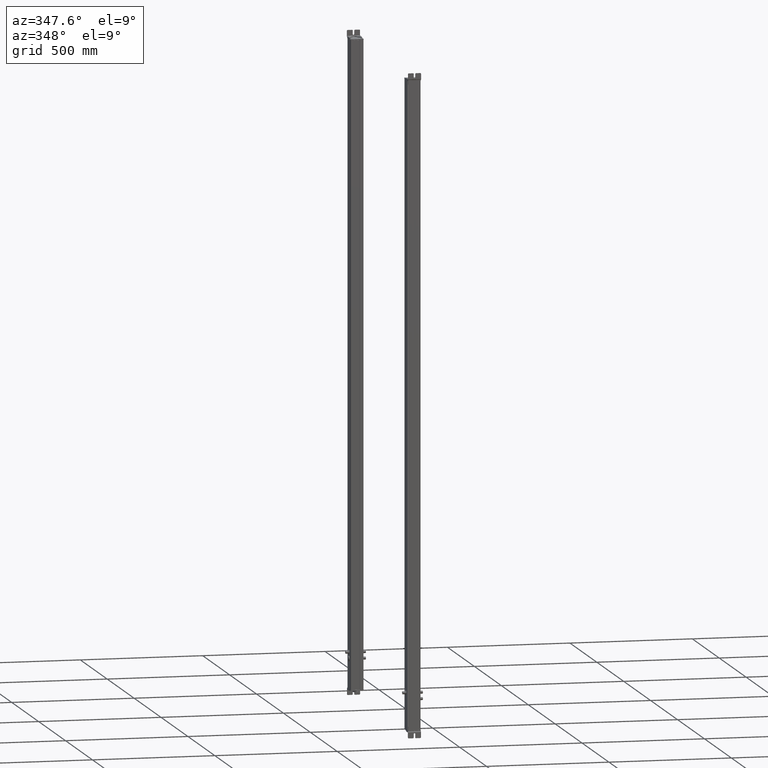
[diagram: clean part render]
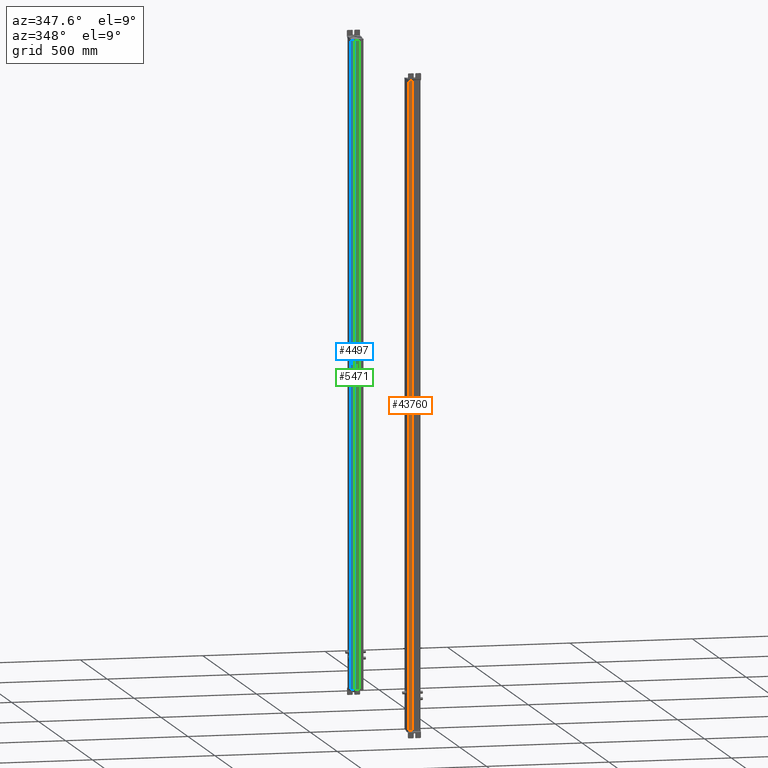
[diagram: same view with three faces highlighted in distinct colors, each labeled with its STEP entity id]
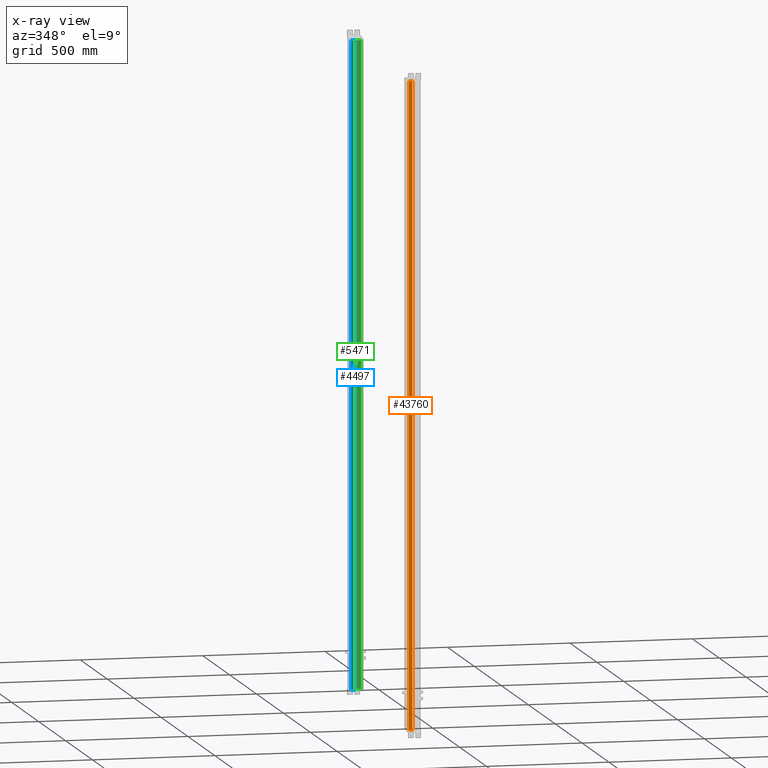
[diagram: x-ray of the same camera — body ghosted, the three highlighted faces saturated]
A machine part, auxiliary view with three faces highlighted in distinct colors.
The next image is the same camera in x-ray (body ghosted, the three faces saturated) — at least one of them is partly hidden behind the body in this view.
Their STEP definitions:

[orange] entity #43760 — the highlighted planar face has unit normal (0, -1, 0).
#43708=CARTESIAN_POINT('Vertex',(617.246770587,120.060780121,0.)) ;
#43711=CARTESIAN_POINT('Line Origine',(617.246770587,120.060780121,1311.)) ;
#43715=CARTESIAN_POINT('Vertex',(617.246770587,120.060780121,2622.)) ;
#43730=CARTESIAN_POINT('Axis2P3D Location',(647.67209889,120.060780121,0.)) ;
#43735=CARTESIAN_POINT('Line Origine',(624.483052148,120.060780121,0.)) ;
#43739=CARTESIAN_POINT('Vertex',(631.719333708,120.060780121,0.)) ;
#43742=CARTESIAN_POINT('Line Origine',(631.719333708,120.060780121,1311.)) ;
#43746=CARTESIAN_POINT('Vertex',(631.719333708,120.060780121,2622.)) ;
#43749=CARTESIAN_POINT('Line Origine',(624.483052148,120.060780121,2622.)) ;
#43712=DIRECTION('Vector Direction',(0.,0.,1.)) ;
#43731=DIRECTION('Axis2P3D Direction',(0.,-1.,0.)) ;
#43732=DIRECTION('Axis2P3D XDirection',(1.,0.,0.)) ;
#43736=DIRECTION('Vector Direction',(1.,0.,0.)) ;
#43743=DIRECTION('Vector Direction',(0.,0.,1.)) ;
#43750=DIRECTION('Vector Direction',(1.,0.,0.)) ;
#43733=AXIS2_PLACEMENT_3D('Plane Axis2P3D',#43730,#43731,#43732) ;
#43755=ORIENTED_EDGE('',*,*,#43717,.F.) ;
#43756=ORIENTED_EDGE('',*,*,#43741,.T.) ;
#43757=ORIENTED_EDGE('',*,*,#43748,.T.) ;
#43758=ORIENTED_EDGE('',*,*,#43753,.F.) ;
#43713=VECTOR('Line Direction',#43712,1.) ;
#43737=VECTOR('Line Direction',#43736,1.) ;
#43744=VECTOR('Line Direction',#43743,1.) ;
#43751=VECTOR('Line Direction',#43750,1.) ;
#43760=ADVANCED_FACE('Body.2',(#43759),#43734,.T.) ;
#43717=EDGE_CURVE('',#43709,#43716,#43714,.T.) ;
#43741=EDGE_CURVE('',#43709,#43740,#43738,.T.) ;
#43748=EDGE_CURVE('',#43740,#43747,#43745,.T.) ;
#43753=EDGE_CURVE('',#43716,#43747,#43752,.T.) ;
#43754=EDGE_LOOP('',(#43755,#43756,#43757,#43758)) ;
#43759=FACE_OUTER_BOUND('',#43754,.T.) ;
#43714=LINE('Line',#43711,#43713) ;
#43738=LINE('Line',#43735,#43737) ;
#43745=LINE('Line',#43742,#43744) ;
#43752=LINE('Line',#43749,#43751) ;
#43734=PLANE('Plane',#43733) ;
#43709=VERTEX_POINT('',#43708) ;
#43716=VERTEX_POINT('',#43715) ;
#43740=VERTEX_POINT('',#43739) ;
#43747=VERTEX_POINT('',#43746) ;

[blue] entity #4497 — the highlighted planar face has unit normal (0, -1, 0).
#598=CARTESIAN_POINT('Axis2P3D Location',(664.195883662,182.060203323,0.)) ;
#4450=CARTESIAN_POINT('Vertex',(664.195883661,182.060203323,0.)) ;
#4453=CARTESIAN_POINT('Line Origine',(664.195883661,182.060203323,1311.)) ;
#4457=CARTESIAN_POINT('Vertex',(664.195883661,182.060203323,2622.)) ;
#4472=CARTESIAN_POINT('Line Origine',(657.845883661,182.060203323,0.)) ;
#4476=CARTESIAN_POINT('Vertex',(651.495883661,182.060203323,0.)) ;
#4479=CARTESIAN_POINT('Line Origine',(651.495883661,182.060203323,1311.)) ;
#4483=CARTESIAN_POINT('Vertex',(651.495883661,182.060203323,2622.)) ;
#4486=CARTESIAN_POINT('Line Origine',(657.845883661,182.060203323,2622.)) ;
#599=DIRECTION('Axis2P3D Direction',(0.,1.,-0.)) ;
#600=DIRECTION('Axis2P3D XDirection',(-1.,0.,0.)) ;
#4454=DIRECTION('Vector Direction',(0.,0.,1.)) ;
#4473=DIRECTION('Vector Direction',(-1.,0.,0.)) ;
#4480=DIRECTION('Vector Direction',(0.,0.,1.)) ;
#4487=DIRECTION('Vector Direction',(-1.,0.,0.)) ;
#601=AXIS2_PLACEMENT_3D('Plane Axis2P3D',#598,#599,#600) ;
#4492=ORIENTED_EDGE('',*,*,#4459,.F.) ;
#4493=ORIENTED_EDGE('',*,*,#4478,.T.) ;
#4494=ORIENTED_EDGE('',*,*,#4485,.T.) ;
#4495=ORIENTED_EDGE('',*,*,#4490,.F.) ;
#4455=VECTOR('Line Direction',#4454,1.) ;
#4474=VECTOR('Line Direction',#4473,1.) ;
#4481=VECTOR('Line Direction',#4480,1.) ;
#4488=VECTOR('Line Direction',#4487,1.) ;
#4497=ADVANCED_FACE('Body.2',(#4496),#602,.T.) ;
#4459=EDGE_CURVE('',#4451,#4458,#4456,.T.) ;
#4478=EDGE_CURVE('',#4451,#4477,#4475,.T.) ;
#4485=EDGE_CURVE('',#4477,#4484,#4482,.T.) ;
#4490=EDGE_CURVE('',#4458,#4484,#4489,.T.) ;
#4491=EDGE_LOOP('',(#4492,#4493,#4494,#4495)) ;
#4496=FACE_OUTER_BOUND('',#4491,.T.) ;
#4456=LINE('Line',#4453,#4455) ;
#4475=LINE('Line',#4472,#4474) ;
#4482=LINE('Line',#4479,#4481) ;
#4489=LINE('Line',#4486,#4488) ;
#602=PLANE('Plane',#601) ;
#4451=VERTEX_POINT('',#4450) ;
#4458=VERTEX_POINT('',#4457) ;
#4477=VERTEX_POINT('',#4476) ;
#4484=VERTEX_POINT('',#4483) ;

[green] entity #5471 — the highlighted planar face has unit normal (0, -1, 0).
#5388=CARTESIAN_POINT('Vertex',(622.718933105,180.560203323,0.)) ;
#5391=CARTESIAN_POINT('Line Origine',(639.443450928,180.560203323,0.)) ;
#5395=CARTESIAN_POINT('Vertex',(656.16796875,180.560203323,0.)) ;
#5428=CARTESIAN_POINT('Vertex',(622.718933105,180.560203323,2622.)) ;
#5431=CARTESIAN_POINT('Line Origine',(622.718933105,180.560203323,1311.)) ;
#5448=CARTESIAN_POINT('Axis2P3D Location',(656.16796875,180.560203323,0.)) ;
#5453=CARTESIAN_POINT('Line Origine',(656.16796875,180.560203323,1311.)) ;
#5457=CARTESIAN_POINT('Vertex',(656.16796875,180.560203323,2622.)) ;
#5460=CARTESIAN_POINT('Line Origine',(639.443450928,180.560203323,2622.)) ;
#5392=DIRECTION('Vector Direction',(-1.,0.,0.)) ;
#5432=DIRECTION('Vector Direction',(0.,0.,1.)) ;
#5449=DIRECTION('Axis2P3D Direction',(-0.,1.,0.)) ;
#5450=DIRECTION('Axis2P3D XDirection',(-1.,-0.,0.)) ;
#5454=DIRECTION('Vector Direction',(0.,0.,1.)) ;
#5461=DIRECTION('Vector Direction',(-1.,0.,0.)) ;
#5451=AXIS2_PLACEMENT_3D('Plane Axis2P3D',#5448,#5449,#5450) ;
#5466=ORIENTED_EDGE('',*,*,#5459,.F.) ;
#5467=ORIENTED_EDGE('',*,*,#5397,.F.) ;
#5468=ORIENTED_EDGE('',*,*,#5435,.T.) ;
#5469=ORIENTED_EDGE('',*,*,#5464,.F.) ;
#5393=VECTOR('Line Direction',#5392,1.) ;
#5433=VECTOR('Line Direction',#5432,1.) ;
#5455=VECTOR('Line Direction',#5454,1.) ;
#5462=VECTOR('Line Direction',#5461,1.) ;
#5471=ADVANCED_FACE('Body.3',(#5470),#5452,.T.) ;
#5397=EDGE_CURVE('',#5389,#5396,#5394,.F.) ;
#5435=EDGE_CURVE('',#5389,#5429,#5434,.T.) ;
#5459=EDGE_CURVE('',#5396,#5458,#5456,.T.) ;
#5464=EDGE_CURVE('',#5458,#5429,#5463,.T.) ;
#5465=EDGE_LOOP('',(#5466,#5467,#5468,#5469)) ;
#5470=FACE_OUTER_BOUND('',#5465,.T.) ;
#5394=LINE('Line',#5391,#5393) ;
#5434=LINE('Line',#5431,#5433) ;
#5456=LINE('Line',#5453,#5455) ;
#5463=LINE('Line',#5460,#5462) ;
#5452=PLANE('Plane',#5451) ;
#5389=VERTEX_POINT('',#5388) ;
#5396=VERTEX_POINT('',#5395) ;
#5429=VERTEX_POINT('',#5428) ;
#5458=VERTEX_POINT('',#5457) ;